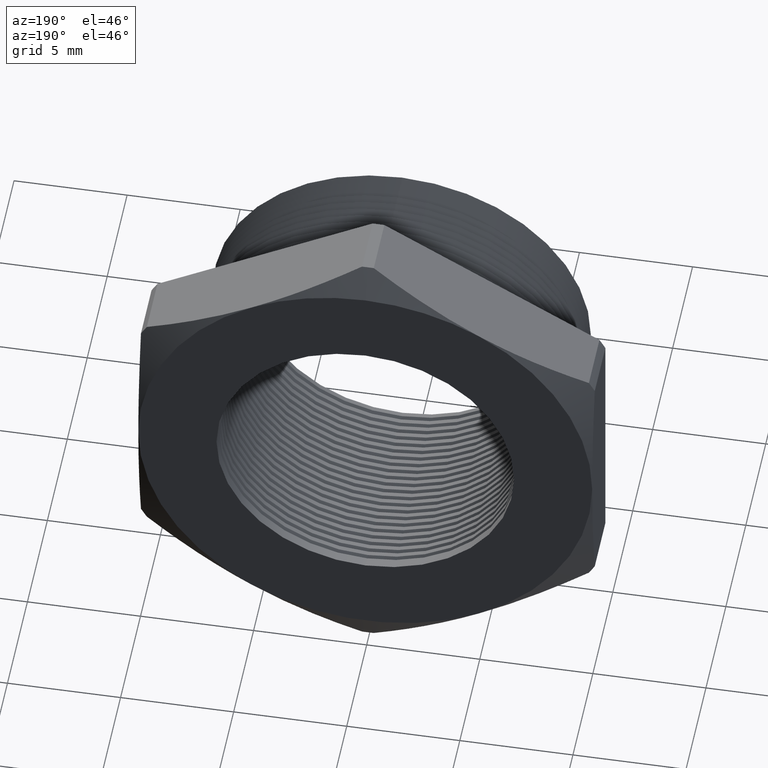
[diagram: clean part render]
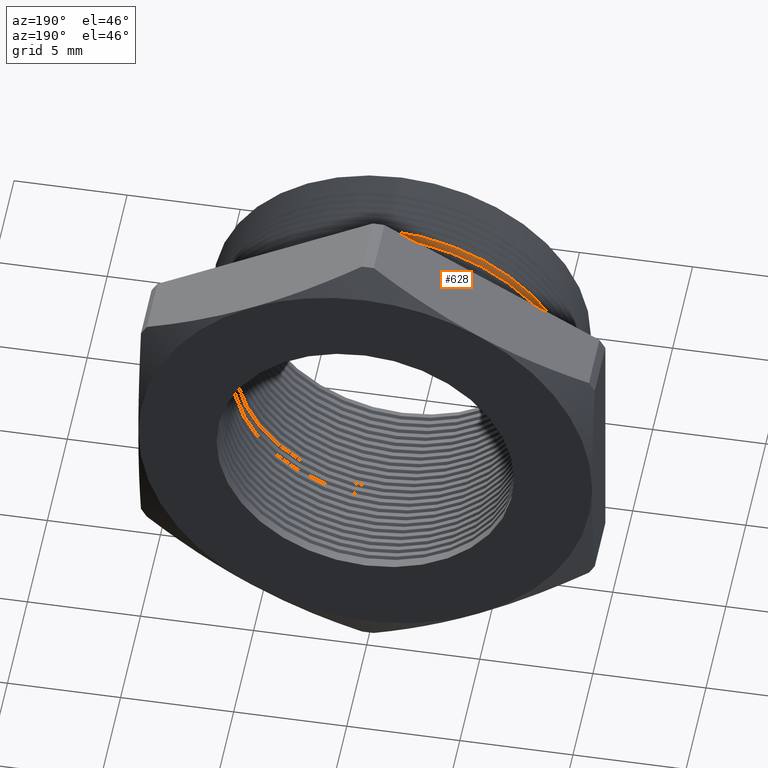
[diagram: same view with one face highlighted and labeled with its STEP entity id]
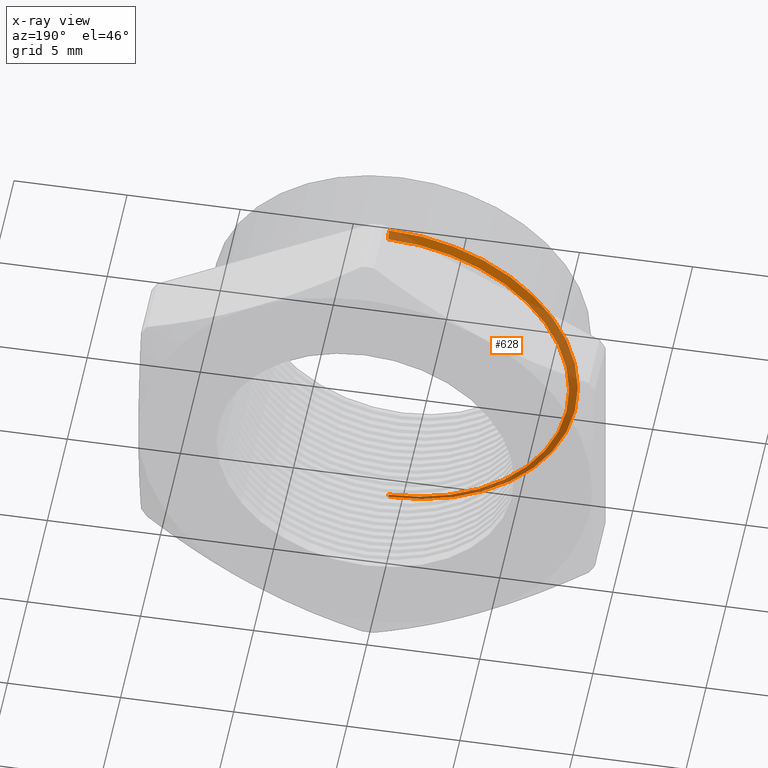
[diagram: x-ray of the same camera — body ghosted, the highlighted face saturated]
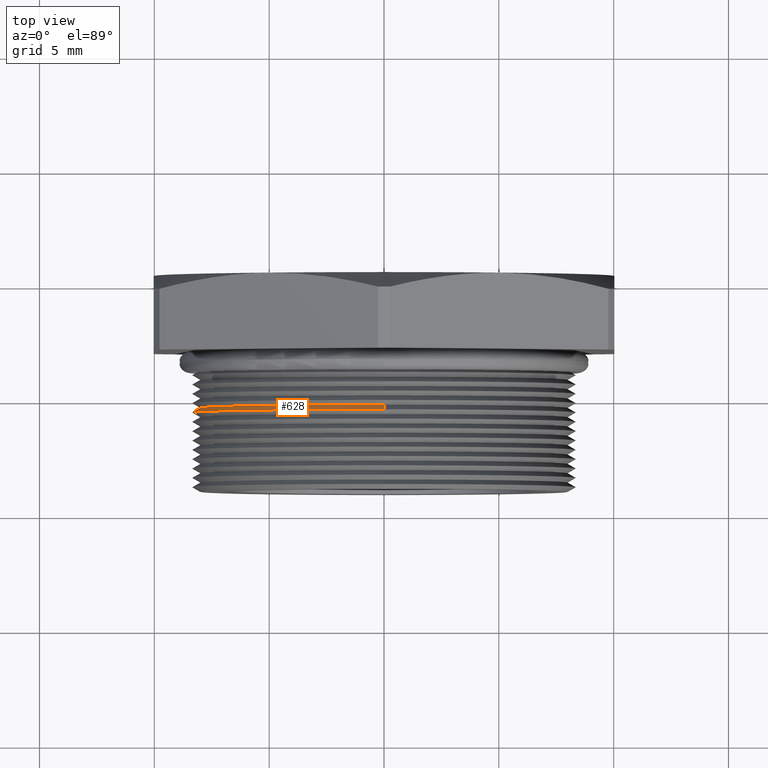
[diagram: same view with one face highlighted and labeled with its STEP entity id]
A machine part, auxiliary view. The second image highlights one B-rep face of the part: STEP entity #628.
The next image is the same camera in x-ray: the body ghosted, the highlighted face saturated — about 55% of this face is hidden behind the body in this view.
A second angle (top view) of the same face is appended — the face is thin or edge-on in the first view.
In plain terms, the highlighted conical surface has half-angle 60 deg.
Its self-contained STEP definition (entity closure, byte-faithful):
#3 = DIRECTION ( 'NONE',  ( 0.0000000000000000000, 0.0000000000000000000, 1.000000000000000000 ) ) ;
#539 = EDGE_CURVE ( 'NONE', #1608, #1691, #3253, .T. ) ;
#628 = ADVANCED_FACE ( 'NONE', ( #3375 ), #3370, .T. ) ;
#629 = EDGE_LOOP ( 'NONE', ( #682, #683, #684, #685 ) ) ;
#682 = ORIENTED_EDGE ( 'NONE', *, *, #1610, .F. ) ;
#683 = ORIENTED_EDGE ( 'NONE', *, *, #539, .T. ) ;
#684 = ORIENTED_EDGE ( 'NONE', *, *, #1613, .T. ) ;
#685 = ORIENTED_EDGE ( 'NONE', *, *, #686, .T. ) ;
#686 = EDGE_CURVE ( 'NONE', #1628, #1631, #3412, .T. ) ;
#1608 = VERTEX_POINT ( 'NONE', #4969 ) ;
#1610 = EDGE_CURVE ( 'NONE', #1608, #1631, #4968, .T. ) ;
#1613 = EDGE_CURVE ( 'NONE', #1691, #1628, #4964, .T. ) ;
#1628 = VERTEX_POINT ( 'NONE', #4994 ) ;
#1631 = VERTEX_POINT ( 'NONE', #4988 ) ;
#1691 = VERTEX_POINT ( 'NONE', #5119 ) ;
#2416 = CARTESIAN_POINT ( 'NONE',  ( 0.0000000000000000000, 0.1735148905829479700, 0.0000000000000000000 ) ) ;
#3162 = DIRECTION ( 'NONE',  ( -0.0000000000000000000, 1.000000000000000000, -0.0000000000000000000 ) ) ;
#3196 = CARTESIAN_POINT ( 'NONE',  ( 0.0000000000000000000, 0.1814672448100089200, 0.0000000000000000000 ) ) ;
#3250 = DIRECTION ( 'NONE',  ( 0.0000000000000000000, 0.0000000000000000000, -1.000000000000000000 ) ) ;
#3251 = DIRECTION ( 'NONE',  ( 0.0000000000000000000, -1.000000000000000000, 0.0000000000000000000 ) ) ;
#3252 = AXIS2_PLACEMENT_3D ( 'NONE', #3196, #3251, #3250 ) ;
#3253 = CIRCLE ( 'NONE', #3252, 0.3150000000000000000 ) ;
#3366 = DIRECTION ( 'NONE',  ( 0.0000000000000000000, 0.0000000000000000000, -1.000000000000000000 ) ) ;
#3367 = DIRECTION ( 'NONE',  ( 0.0000000000000000000, -1.000000000000000000, 0.0000000000000000000 ) ) ;
#3368 = CARTESIAN_POINT ( 'NONE',  ( 0.0000000000000000000, 0.1814672448100089200, 0.0000000000000000000 ) ) ;
#3369 = AXIS2_PLACEMENT_3D ( 'NONE', #3368, #3367, #3366 ) ;
#3370 = CONICAL_SURFACE ( 'NONE', #3369, 0.3150000000000000000, 1.047197551196596700 ) ;
#3375 = FACE_OUTER_BOUND ( 'NONE', #629, .T. ) ;
#3412 = CIRCLE ( 'NONE', #3417, 0.3287738815610546400 ) ;
#3417 = AXIS2_PLACEMENT_3D ( 'NONE', #2416, #3162, #3 ) ;
#4961 = DIRECTION ( 'NONE',  ( 0.0000000000000000000, -0.5000000000000008900, -0.8660254037844380400 ) ) ;
#4962 = VECTOR ( 'NONE', #4961, 39.37007874015748100 ) ;
#4963 = CARTESIAN_POINT ( 'NONE',  ( 0.0000000000000000000, 0.1814672448100089200, -0.3150000000000000000 ) ) ;
#4964 = LINE ( 'NONE', #4963, #4962 ) ;
#4965 = DIRECTION ( 'NONE',  ( 1.060575238724906300E-016, -0.5000000000000008900, 0.8660254037844380400 ) ) ;
#4966 = VECTOR ( 'NONE', #4965, 39.37007874015748100 ) ;
#4967 = CARTESIAN_POINT ( 'NONE',  ( 3.857637417314162700E-017, 0.1814672448100089200, 0.3150000000000000000 ) ) ;
#4968 = LINE ( 'NONE', #4967, #4966 ) ;
#4969 = CARTESIAN_POINT ( 'NONE',  ( 3.857637417314162700E-017, 0.1814672448100089200, 0.3150000000000000000 ) ) ;
#4988 = CARTESIAN_POINT ( 'NONE',  ( 4.026318816969966200E-017, 0.1735148905829479700, 0.3287738815610546400 ) ) ;
#4994 = CARTESIAN_POINT ( 'NONE',  ( 0.0000000000000000000, 0.1735148905829479700, -0.3287738815610546400 ) ) ;
#5119 = CARTESIAN_POINT ( 'NONE',  ( 0.0000000000000000000, 0.1814672448100089200, -0.3150000000000000000 ) ) ;